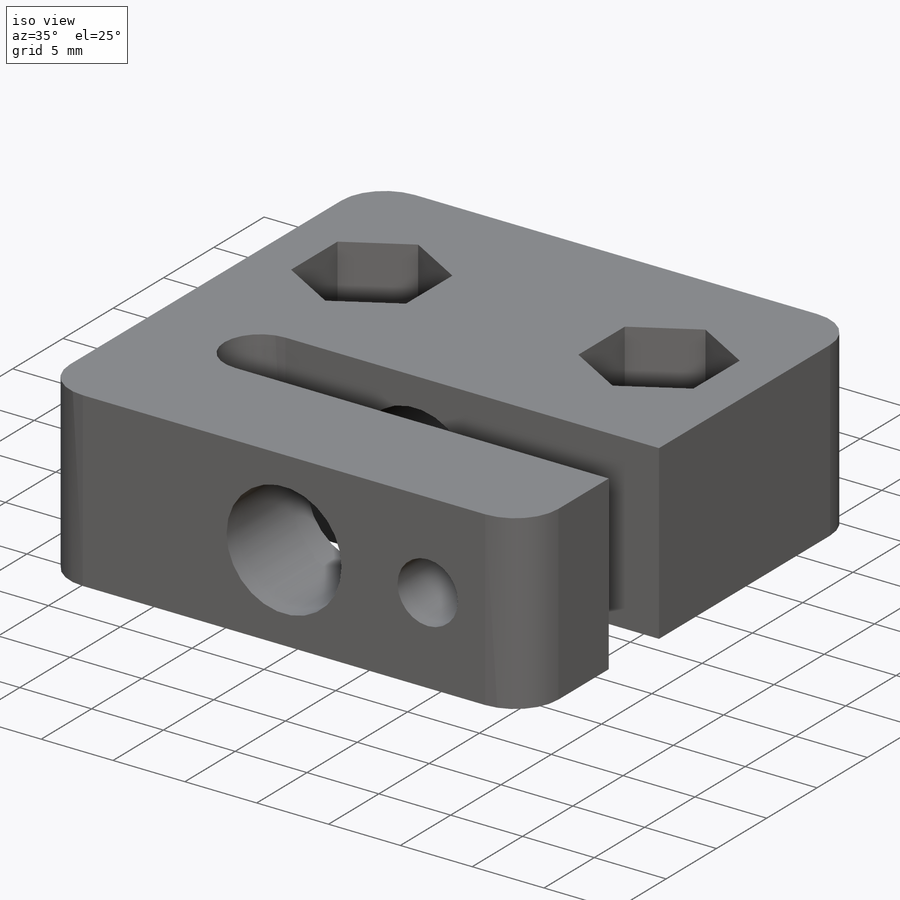
[diagram: iso view]
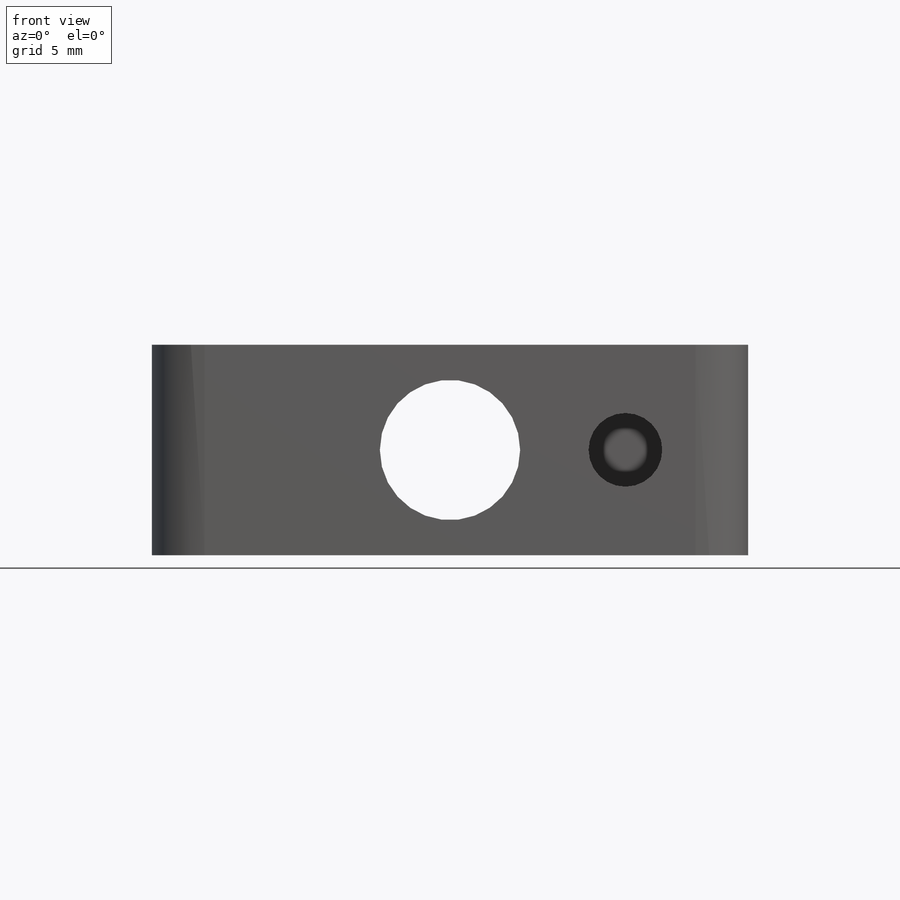
[diagram: front view]
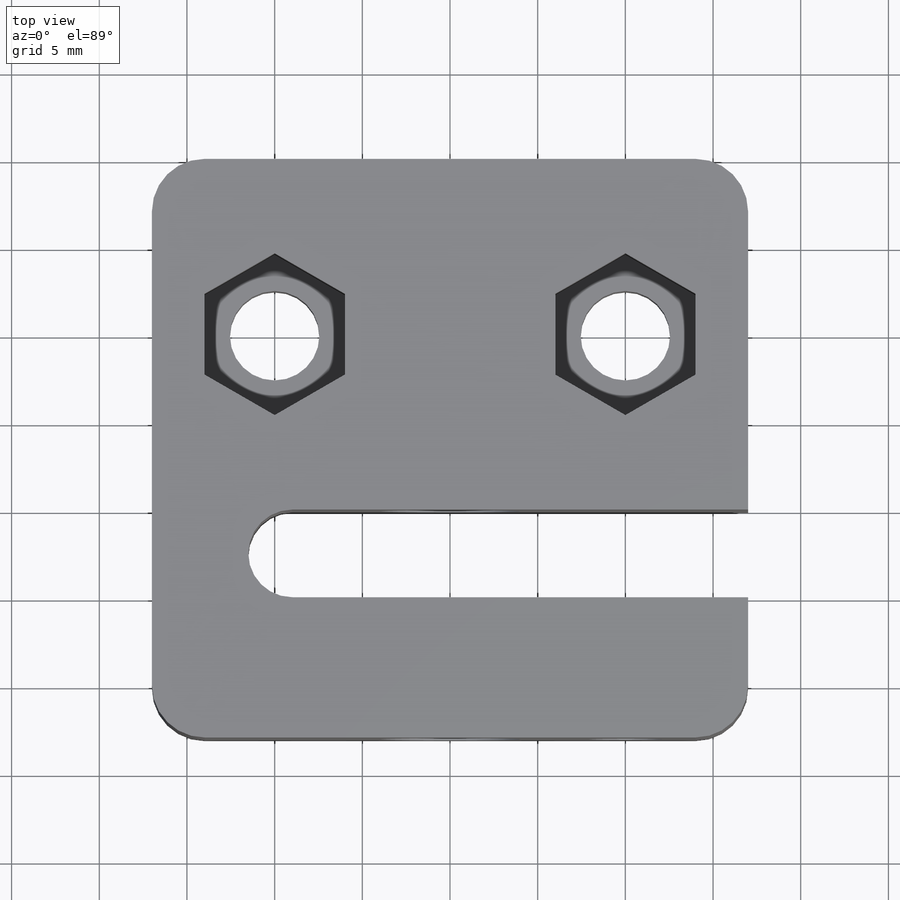
[diagram: top view]
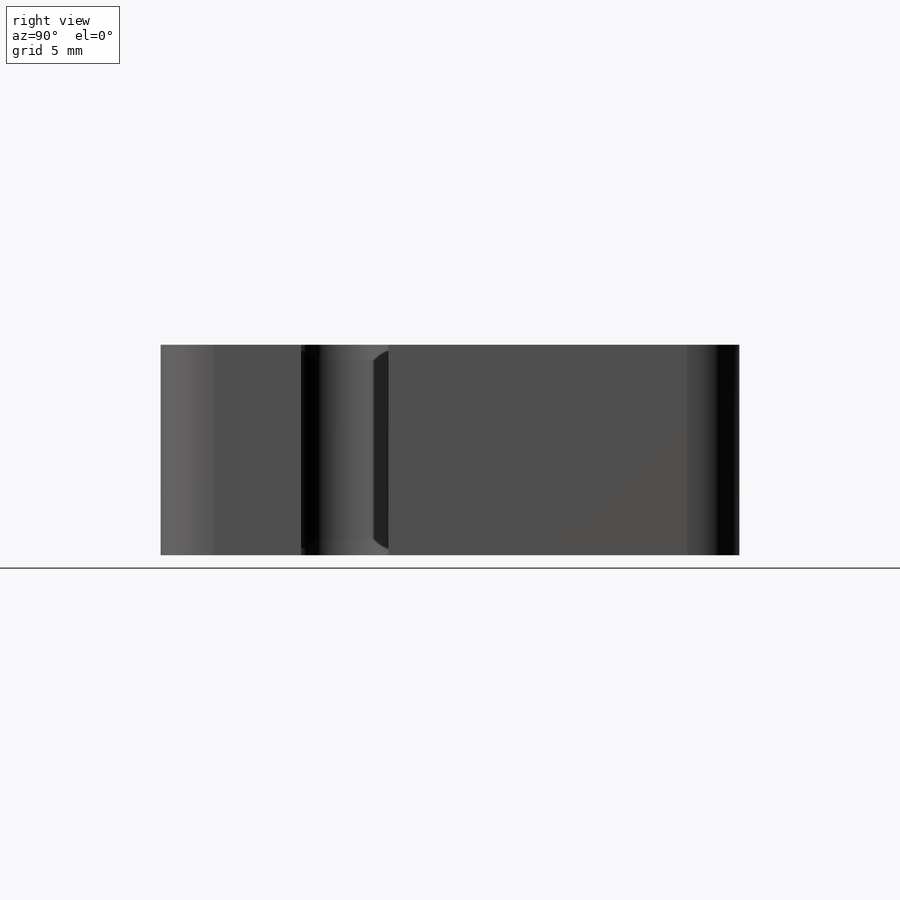
[diagram: right view]
SOLIDWORKS PART (.sldprt)
format: sldprt  version: not decoded by parser v0  size: 272,896 bytes
history: native  units: mm
features: sketch x8, cut_extrude x5, material x1, extrude x1, hole x1, fillet x1 (+13 scaffold rows collapsed)
feature tree (30):
  scaffold x13  (default folders/planes/origin — collapsed)
  material  "Delrin 2700 NC010, Low Viscosity Acetal Copolymer (SS)"
  sketch  "Sketch1"  dims[D1=12.0mm D2=34.0mm]
  extrude  "Boss-Extrude1"  Depth=33mm
  sketch  "Sketch2"  dims[D1=8.0mm]
  cut_extrude  "Cut-Extrude1"  [1 undecoded]
  sketch  "Sketch3"  dims[D1=5.1mm D2=20.0mm D3=10.0mm]
  cut_extrude  "Cut-Extrude2"  [1 undecoded]
  sketch  "Sketch4"  dims[D1=8.0mm]
  cut_extrude  "Cut-Extrude3"  Depth=5mm
  sketch  "Sketch5"  dims[D1=9.0mm]
  cut_extrude  "Cut-Extrude4"  Depth=2mm
  sketch  "Sketch6"  dims[D1=5.0mm D2=8.0mm D3=26.0mm]
  cut_extrude  "Cut-Extrude5"  [1 undecoded]
  hole  "M5x0.8 Tapped Hole1"  Diameter=4.2mm Depth=8mm
  sketch  "Sketch8"  dims[D1=10.0mm]
  sketch  "Sketch7"  dims[hole-wizard template sketch: 60 standard entries collapsed; hole parameters kept: c18.Thru Tap Drill Depth=8.0mm]
  fillet  "Fillet1"  Radius=3mm
decode coverage: 13 of 16 modeling features carry decoded parameters
note: ~ marks probable driven/reference dimensions
note: 3 parameter values undecoded
summary: no parameter record found for 3 features
note: suppression state not decoded; provenance and decode notes live in map.json
